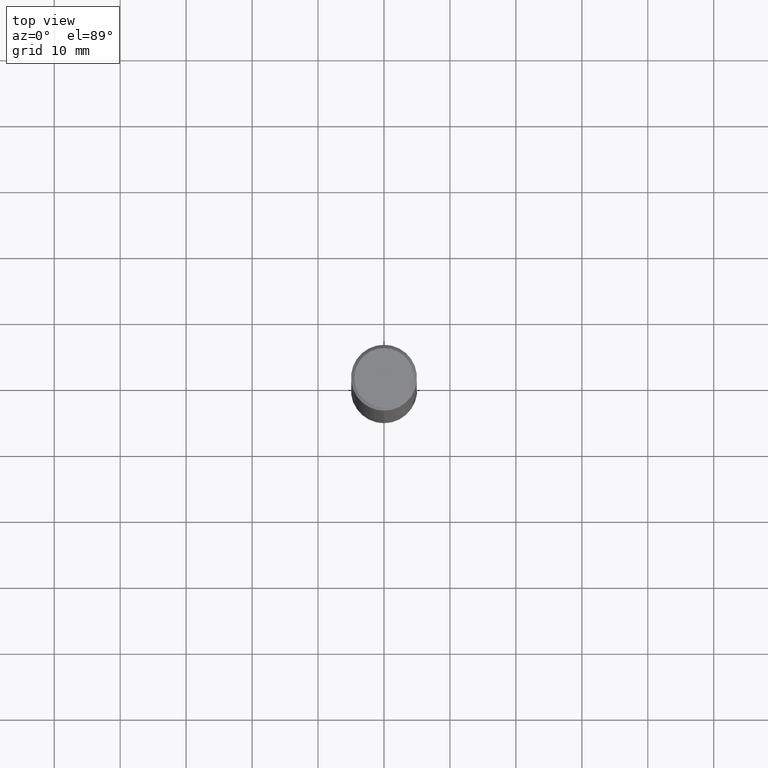
[diagram: clean part render]
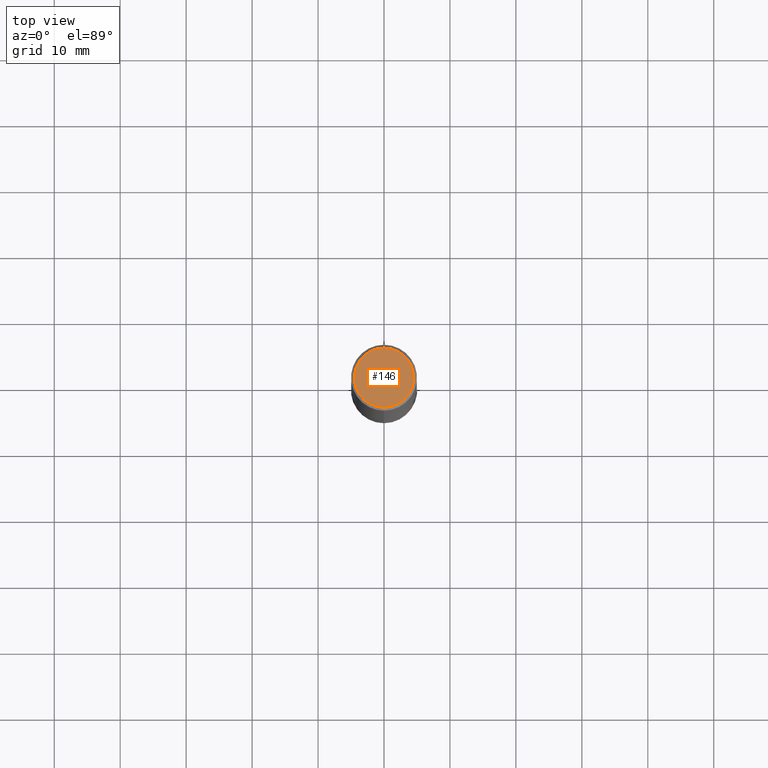
[diagram: same view with one face highlighted and labeled with its STEP entity id]
A machine part, top view. The second image highlights one B-rep face of the part: STEP entity #146.
In plain terms, the highlighted planar face has unit normal (-0, 0, 1).
Its self-contained STEP definition (entity closure, byte-faithful):
#84=EDGE_CURVE('',#150,#86,#191,.T.);
#86=VERTEX_POINT('',#193);
#144=EDGE_CURVE('',#86,#150,#259,.T.);
#146=ADVANCED_FACE('',(#261),#262,.T.);
#150=VERTEX_POINT('',#266);
#191=CIRCLE('',#303,4.5);
#193=CARTESIAN_POINT('',(5.5107285922007E-016,-4.5,0.0));
#259=CIRCLE('',#387,4.5);
#261=FACE_OUTER_BOUND('',#389,.T.);
#262=PLANE('',#390);
#266=CARTESIAN_POINT('',(0.0,4.5,0.0));
#303=AXIS2_PLACEMENT_3D('',#432,#433,#434);
#387=AXIS2_PLACEMENT_3D('',#523,#524,#525);
#389=EDGE_LOOP('',(#527,#528));
#390=AXIS2_PLACEMENT_3D('',#529,#530,#531);
#432=CARTESIAN_POINT('',(0.0,0.0,0.0));
#433=DIRECTION('',(0.0,0.0,-1.0));
#434=DIRECTION('',(0.0,1.0,0.0));
#523=CARTESIAN_POINT('',(0.0,0.0,0.0));
#524=DIRECTION('',(0.0,0.0,-1.0));
#525=DIRECTION('',(0.0,1.0,0.0));
#527=ORIENTED_EDGE('',*,*,#84,.F.);
#528=ORIENTED_EDGE('',*,*,#144,.F.);
#529=CARTESIAN_POINT('',(0.0,2.25,0.0));
#530=DIRECTION('',(-0.0,0.0,1.0));
#531=DIRECTION('',(0.0,-1.0,0.0));